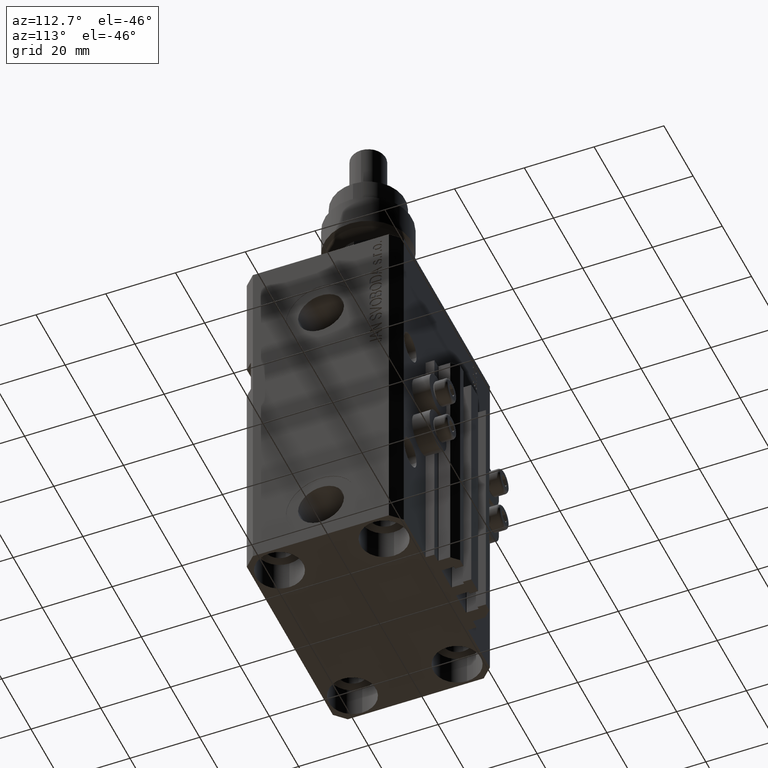
[diagram: clean part render]
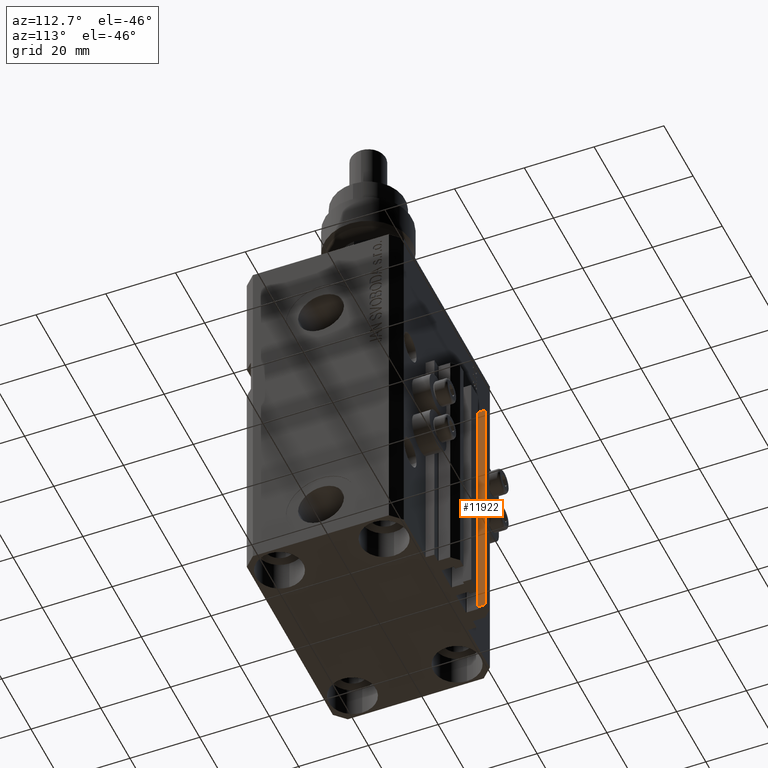
[diagram: same view with one face highlighted and labeled with its STEP entity id]
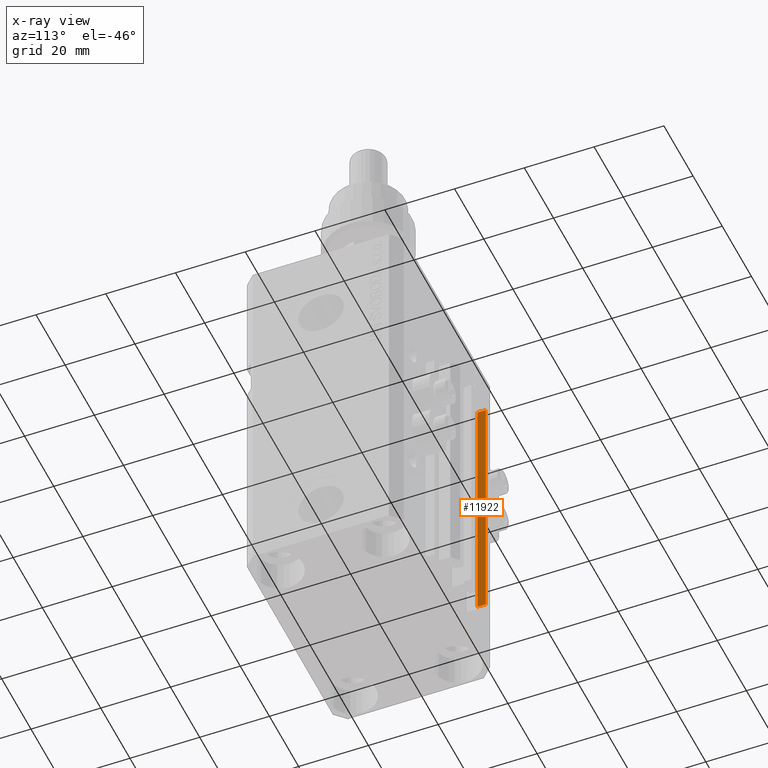
[diagram: x-ray of the same camera — body ghosted, the highlighted face saturated]
A machine part, auxiliary view. The second image highlights one B-rep face of the part: STEP entity #11922.
The next image is the same camera in x-ray: the body ghosted, the highlighted face saturated — about 0% of this face is hidden behind the body in this view.
In plain terms, the highlighted planar face has unit normal (1, 0, 0).
Its self-contained STEP definition (entity closure, byte-faithful):
#513 = VERTEX_POINT ( 'NONE', #1099 ) ;
#1099 = CARTESIAN_POINT ( 'NONE',  ( -7.650000000000000355, 30.49999999999948486, -33.00000000000000000 ) ) ;
#3934 = EDGE_CURVE ( 'NONE', #4584, #21437, #16723, .T. ) ;
#4584 = VERTEX_POINT ( 'NONE', #48354 ) ;
#4815 = VERTEX_POINT ( 'NONE', #5432 ) ;
#5432 = CARTESIAN_POINT ( 'NONE',  ( -7.650000000000000355, 30.49999999999948486, -107.0000000000000000 ) ) ;
#5880 = EDGE_CURVE ( 'NONE', #21437, #513, #20367, .T. ) ;
#6838 = CARTESIAN_POINT ( 'NONE',  ( -7.650000000000000355, 28.09999999999948628, -107.0000000000000000 ) ) ;
#7248 = ORIENTED_EDGE ( 'NONE', *, *, #7887, .T. ) ;
#7887 = EDGE_CURVE ( 'NONE', #4584, #4815, #33575, .T. ) ;
#10620 = ORIENTED_EDGE ( 'NONE', *, *, #3934, .F. ) ;
#10711 = PLANE ( 'NONE',  #17994 ) ;
#11922 = ADVANCED_FACE ( 'NONE', ( #41932 ), #10711, .T. ) ;
#12852 = CARTESIAN_POINT ( 'NONE',  ( -7.650000000000000355, 28.09999999999948628, -107.0000000000000000 ) ) ;
#13962 = DIRECTION ( 'NONE',  ( 0.000000000000000000, 1.000000000000000000, 0.000000000000000000 ) ) ;
#14690 = LINE ( 'NONE', #26563, #37992 ) ;
#16723 = LINE ( 'NONE', #12852, #24485 ) ;
#16974 = CARTESIAN_POINT ( 'NONE',  ( -7.650000000000000355, 28.09999999999948628, -33.00000000000000000 ) ) ;
#17994 = AXIS2_PLACEMENT_3D ( 'NONE', #6838, #49698, #29813 ) ;
#18746 = VECTOR ( 'NONE', #13962, 1000.000000000000000 ) ;
#20295 = VECTOR ( 'NONE', #37874, 1000.000000000000000 ) ;
#20367 = LINE ( 'NONE', #36104, #20295 ) ;
#20481 = EDGE_CURVE ( 'NONE', #4815, #513, #14690, .T. ) ;
#21437 = VERTEX_POINT ( 'NONE', #16974 ) ;
#24485 = VECTOR ( 'NONE', #48464, 1000.000000000000000 ) ;
#26563 = CARTESIAN_POINT ( 'NONE',  ( -7.650000000000000355, 30.49999999999948486, -107.0000000000000000 ) ) ;
#29653 = ORIENTED_EDGE ( 'NONE', *, *, #5880, .F. ) ;
#29714 = CARTESIAN_POINT ( 'NONE',  ( -7.650000000000000355, 28.09999999999948628, -107.0000000000000000 ) ) ;
#29813 = DIRECTION ( 'NONE',  ( 0.000000000000000000, 0.000000000000000000, -1.000000000000000000 ) ) ;
#33575 = LINE ( 'NONE', #29714, #18746 ) ;
#36104 = CARTESIAN_POINT ( 'NONE',  ( -7.650000000000000355, 28.09999999999948628, -33.00000000000000000 ) ) ;
#37874 = DIRECTION ( 'NONE',  ( 0.000000000000000000, 1.000000000000000000, 0.000000000000000000 ) ) ;
#37992 = VECTOR ( 'NONE', #42297, 1000.000000000000000 ) ;
#41824 = ORIENTED_EDGE ( 'NONE', *, *, #20481, .T. ) ;
#41932 = FACE_OUTER_BOUND ( 'NONE', #49149, .T. ) ;
#42297 = DIRECTION ( 'NONE',  ( 0.000000000000000000, 0.000000000000000000, 1.000000000000000000 ) ) ;
#48354 = CARTESIAN_POINT ( 'NONE',  ( -7.650000000000000355, 28.09999999999948628, -107.0000000000000000 ) ) ;
#48464 = DIRECTION ( 'NONE',  ( 0.000000000000000000, 0.000000000000000000, 1.000000000000000000 ) ) ;
#49149 = EDGE_LOOP ( 'NONE', ( #29653, #10620, #7248, #41824 ) ) ;
#49698 = DIRECTION ( 'NONE',  ( 1.000000000000000000, 0.000000000000000000, 0.000000000000000000 ) ) ;